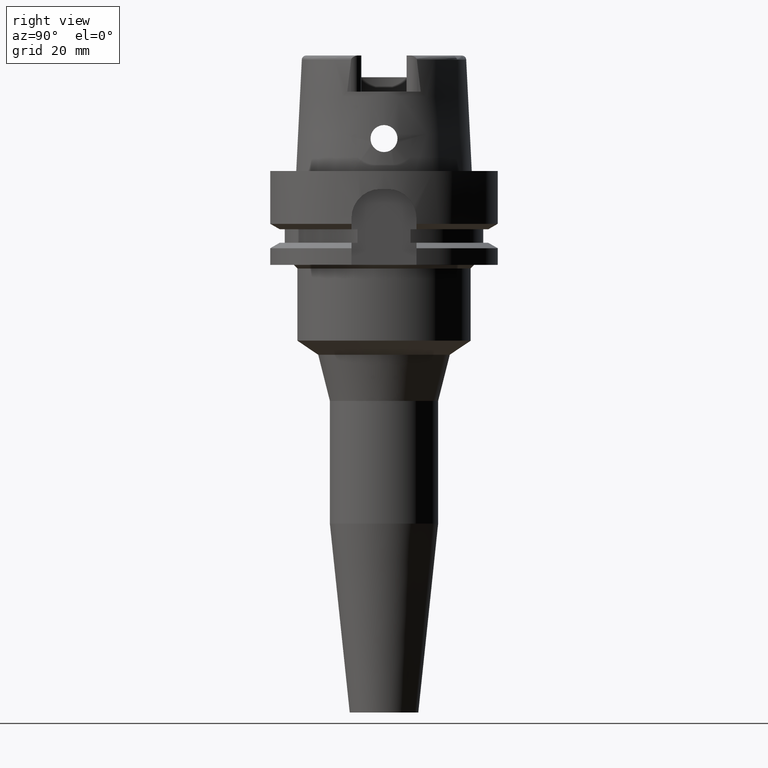
[diagram: clean part render]
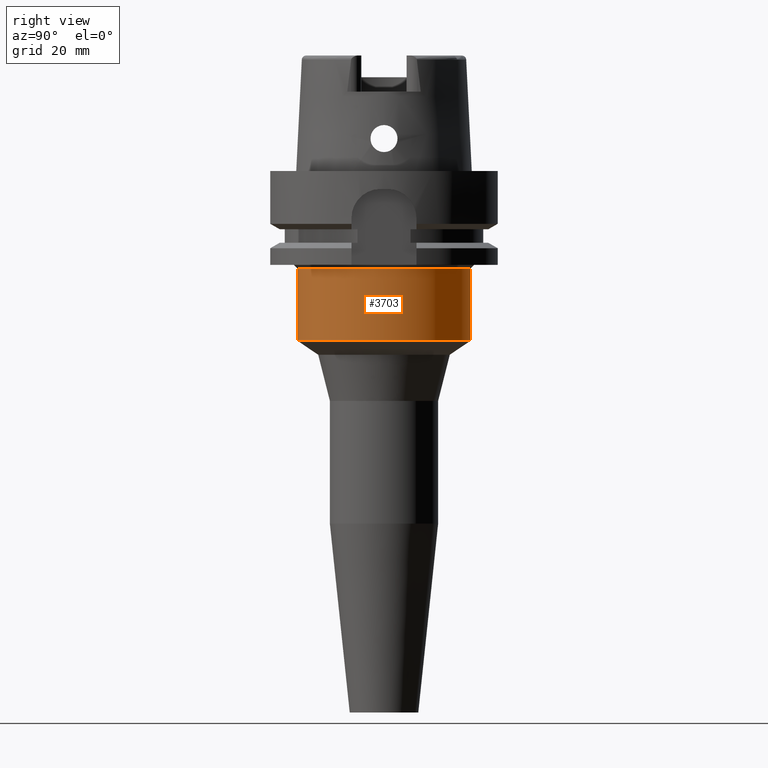
[diagram: same view with one face highlighted and labeled with its STEP entity id]
A machine part, right view. The second image highlights one B-rep face of the part: STEP entity #3703.
In plain terms, the highlighted cylindrical surface (partial cylindrical patch) has radius 24 mm, axis along (0, 0, 1).
Its self-contained STEP definition (entity closure, byte-faithful):
#1631=CARTESIAN_POINT('',(0.E0,0.E0,-2.7E1));
#1632=DIRECTION('',(0.E0,0.E0,-1.E0));
#1633=DIRECTION('',(0.E0,1.E0,0.E0));
#1634=AXIS2_PLACEMENT_3D('',#1631,#1632,#1633);
#1639=DIRECTION('',(0.E0,1.492139745096E-14,-1.E0));
#1640=VECTOR('',#1639,2.E1);
#1641=CARTESIAN_POINT('',(0.E0,2.4E1,-2.7E1));
#1642=LINE('',#1641,#1640);
#1646=DIRECTION('',(0.E0,-1.492139745096E-14,-1.E0));
#1647=VECTOR('',#1646,2.E1);
#1648=CARTESIAN_POINT('',(0.E0,-2.4E1,-2.7E1));
#1649=LINE('',#1648,#1647);
#1683=CARTESIAN_POINT('',(0.E0,0.E0,-4.7E1));
#1684=DIRECTION('',(0.E0,0.E0,1.E0));
#1685=DIRECTION('',(0.E0,-1.E0,0.E0));
#1686=AXIS2_PLACEMENT_3D('',#1683,#1684,#1685);
#2452=CARTESIAN_POINT('',(0.E0,2.4E1,-4.7E1));
#2453=VERTEX_POINT('',#2452);
#2454=CARTESIAN_POINT('',(0.E0,-2.4E1,-4.7E1));
#2455=VERTEX_POINT('',#2454);
#2456=CARTESIAN_POINT('',(0.E0,2.4E1,-2.7E1));
#2457=VERTEX_POINT('',#2456);
#2458=CARTESIAN_POINT('',(0.E0,-2.4E1,-2.7E1));
#2459=VERTEX_POINT('',#2458);
#3689=CARTESIAN_POINT('',(0.E0,0.E0,-1.591E2));
#3690=DIRECTION('',(0.E0,0.E0,1.E0));
#3691=DIRECTION('',(0.E0,1.E0,0.E0));
#3692=AXIS2_PLACEMENT_3D('',#3689,#3690,#3691);
#3693=CYLINDRICAL_SURFACE('',#3692,2.4E1);
#3695=ORIENTED_EDGE('',*,*,#3694,.T.);
#3697=ORIENTED_EDGE('',*,*,#3696,.F.);
#3699=ORIENTED_EDGE('',*,*,#3698,.F.);
#3700=ORIENTED_EDGE('',*,*,#3682,.F.);
#3701=EDGE_LOOP('',(#3695,#3697,#3699,#3700));
#3702=FACE_OUTER_BOUND('',#3701,.F.);
#1635=CIRCLE('',#1634,2.4E1);
#1687=CIRCLE('',#1686,2.4E1);
#3682=EDGE_CURVE('',#2457,#2459,#1635,.T.);
#3694=EDGE_CURVE('',#2457,#2453,#1642,.T.);
#3696=EDGE_CURVE('',#2455,#2453,#1687,.T.);
#3698=EDGE_CURVE('',#2459,#2455,#1649,.T.);
#3703=ADVANCED_FACE('',(#3702),#3693,.T.);